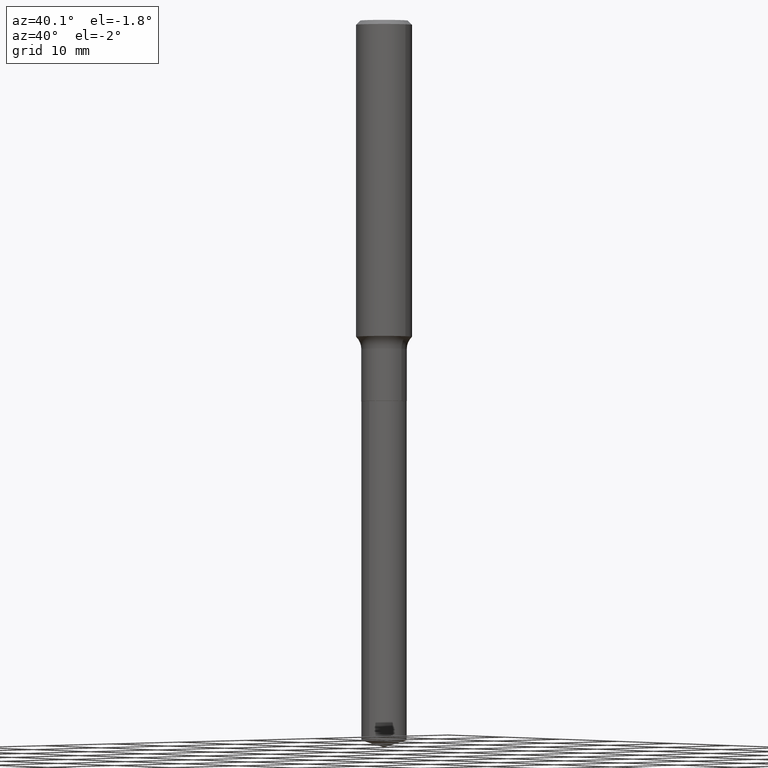
[diagram: clean part render]
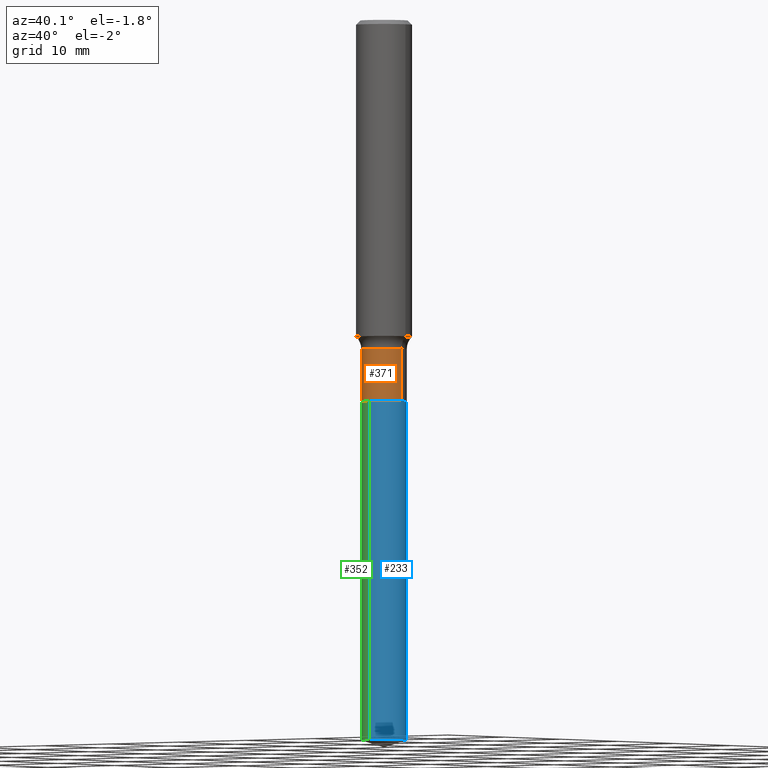
[diagram: same view with three faces highlighted in distinct colors, each labeled with its STEP entity id]
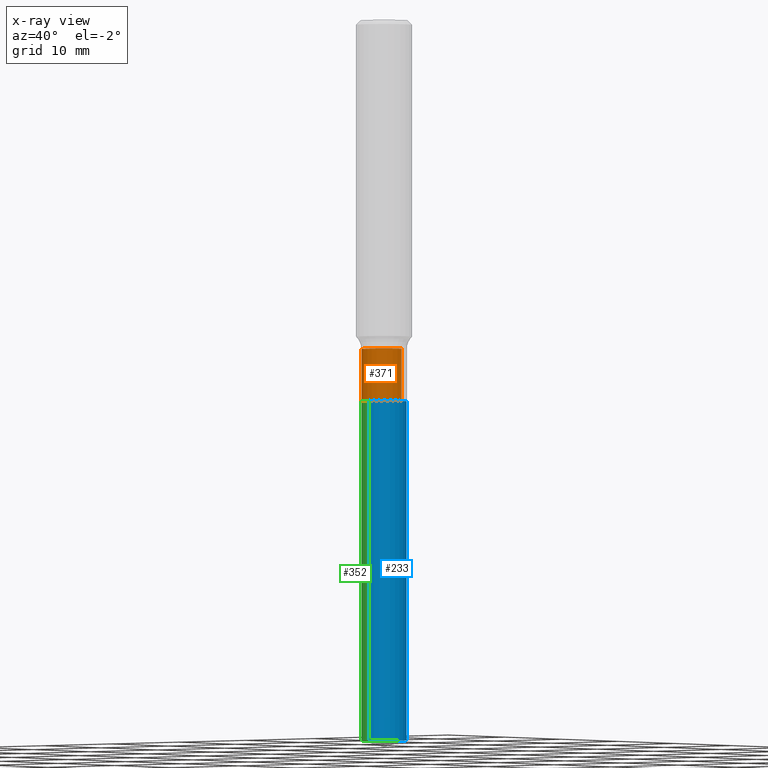
[diagram: x-ray of the same camera — body ghosted, the three highlighted faces saturated]
A machine part, auxiliary view with three faces highlighted in distinct colors.
The next image is the same camera in x-ray (body ghosted, the three faces saturated) — at least one of them is partly hidden behind the body in this view.
Their STEP definitions:

[orange] entity #371 — the highlighted cylindrical surface (edge-blend (fillet) strip) has radius 2.5794 mm, axis along (-0, 0, 1).
#24 = ORIENTED_EDGE ( 'NONE', *, *, #385, .T. ) ;
#27 = LINE ( 'NONE', #58, #154 ) ;
#46 = CARTESIAN_POINT ( 'NONE',  ( 3.593616410689058018E-29, -5.130731827430002515E-15, -1.469500000000000028 ) ) ;
#52 = CARTESIAN_POINT ( 'NONE',  ( 0.1015500000000000014, -6.653715987433380604E-15, -1.702600000000000335 ) ) ;
#55 = DIRECTION ( 'NONE',  ( -2.445468806185136877E-29, 3.491481338843145188E-15, 1.000000000000000000 ) ) ;
#58 = CARTESIAN_POINT ( 'NONE',  ( 0.1015499999999999875, -7.091198599190402890E-16, 4.951757515820772372E-30 ) ) ;
#64 = FACE_OUTER_BOUND ( 'NONE', #436, .T. ) ;
#85 = DIRECTION ( 'NONE',  ( 1.000000000000000000, -6.982962677686264344E-15, 0.000000000000000000 ) ) ;
#87 = AXIS2_PLACEMENT_3D ( 'NONE', #46, #192, #483 ) ;
#90 = CARTESIAN_POINT ( 'NONE',  ( 0.1015499999999999736, -5.839851687349042508E-15, -1.469500000000000028 ) ) ;
#93 = VERTEX_POINT ( 'NONE', #451 ) ;
#108 = EDGE_CURVE ( 'NONE', #252, #368, #117, .T. ) ;
#117 = CIRCLE ( 'NONE', #87, 0.1015499999999999736 ) ;
#124 = DIRECTION ( 'NONE',  ( -2.445468806185136597E-29, 3.491481338843145583E-15, 1.000000000000000000 ) ) ;
#132 = ORIENTED_EDGE ( 'NONE', *, *, #108, .F. ) ;
#133 = VECTOR ( 'NONE', #457, 39.37007874015748143 ) ;
#134 = CARTESIAN_POINT ( 'NONE',  ( 0.000000000000000000, 0.000000000000000000, 0.000000000000000000 ) ) ;
#140 = EDGE_CURVE ( 'NONE', #93, #244, #395, .T. ) ;
#154 = VECTOR ( 'NONE', #55, 39.37007874015748143 ) ;
#156 = CARTESIAN_POINT ( 'NONE',  ( -0.1015499999999999736, -4.816107829307788434E-15, -1.469500000000000028 ) ) ;
#172 = EDGE_CURVE ( 'NONE', #93, #252, #343, .T. ) ;
#192 = DIRECTION ( 'NONE',  ( -2.445468806185136597E-29, 3.491481338843145583E-15, 1.000000000000000000 ) ) ;
#196 = DIRECTION ( 'NONE',  ( -2.445468806185136597E-29, 3.491481338843145583E-15, 1.000000000000000000 ) ) ;
#244 = VERTEX_POINT ( 'NONE', #52 ) ;
#252 = VERTEX_POINT ( 'NONE', #156 ) ;
#254 = CYLINDRICAL_SURFACE ( 'NONE', #367, 0.1015499999999999875 ) ;
#255 = ORIENTED_EDGE ( 'NONE', *, *, #172, .F. ) ;
#275 = CARTESIAN_POINT ( 'NONE',  ( -0.1015499999999999875, 7.215561481643816499E-16, -4.995178584153856401E-30 ) ) ;
#343 = LINE ( 'NONE', #275, #133 ) ;
#367 = AXIS2_PLACEMENT_3D ( 'NONE', #134, #124, #392 ) ;
#368 = VERTEX_POINT ( 'NONE', #90 ) ;
#371 = ADVANCED_FACE ( 'NONE', ( #64 ), #254, .T. ) ;
#385 = EDGE_CURVE ( 'NONE', #244, #368, #27, .T. ) ;
#392 = DIRECTION ( 'NONE',  ( 1.000000000000000000, -6.982962677686266711E-15, 4.876176775795935793E-29 ) ) ;
#395 = CIRCLE ( 'NONE', #462, 0.1015500000000000014 ) ;
#436 = EDGE_LOOP ( 'NONE', ( #255, #470, #24, #132 ) ) ;
#451 = CARTESIAN_POINT ( 'NONE',  ( -0.1015500000000000014, -4.816107829307788434E-15, -1.702600000000000335 ) ) ;
#457 = DIRECTION ( 'NONE',  ( -2.445468806185136877E-29, 3.491481338843145188E-15, 1.000000000000000000 ) ) ;
#461 = CARTESIAN_POINT ( 'NONE',  ( 4.163655189410814110E-29, -5.944596127514340611E-15, -1.702600000000000335 ) ) ;
#462 = AXIS2_PLACEMENT_3D ( 'NONE', #461, #196, #85 ) ;
#470 = ORIENTED_EDGE ( 'NONE', *, *, #140, .T. ) ;
#483 = DIRECTION ( 'NONE',  ( 1.000000000000000000, -6.982962677686266711E-15, 0.000000000000000000 ) ) ;

[blue] entity #233 — the highlighted cylindrical surface (edge-blend (fillet) strip) has radius 2.5794 mm, axis along (-0, 0, 1).
#4 = EDGE_CURVE ( 'NONE', #477, #257, #153, .T. ) ;
#12 = CARTESIAN_POINT ( 'NONE',  ( 4.164877923813906911E-29, -5.946341868183761325E-15, -1.703100000000000280 ) ) ;
#20 = ORIENTED_EDGE ( 'NONE', *, *, #4, .T. ) ;
#41 = VECTOR ( 'NONE', #311, 39.37007874015748143 ) ;
#48 = CIRCLE ( 'NONE', #424, 0.1015500000000000014 ) ;
#88 = LINE ( 'NONE', #278, #258 ) ;
#100 = VERTEX_POINT ( 'NONE', #269 ) ;
#102 = AXIS2_PLACEMENT_3D ( 'NONE', #105, #414, #405 ) ;
#105 = CARTESIAN_POINT ( 'NONE',  ( 7.858917578729167832E-29, -1.125063821662293819E-14, -3.217981407989339626 ) ) ;
#135 = VERTEX_POINT ( 'NONE', #425 ) ;
#144 = EDGE_CURVE ( 'NONE', #257, #135, #428, .T. ) ;
#153 = CIRCLE ( 'NONE', #102, 0.1015500000000000291 ) ;
#159 = CYLINDRICAL_SURFACE ( 'NONE', #484, 0.1015500000000000014 ) ;
#183 = CARTESIAN_POINT ( 'NONE',  ( -7.091198599189617973E-16, -0.1015500000000112701, -3.217981407989339182 ) ) ;
#209 = ORIENTED_EDGE ( 'NONE', *, *, #381, .F. ) ;
#214 = EDGE_LOOP ( 'NONE', ( #20, #293, #344, #209 ) ) ;
#215 = EDGE_CURVE ( 'NONE', #100, #135, #48, .T. ) ;
#216 = DIRECTION ( 'NONE',  ( -2.438500885569821195E-29, 3.501459797753689720E-15, 1.000000000000000000 ) ) ;
#233 = ADVANCED_FACE ( 'NONE', ( #346 ), #159, .T. ) ;
#239 = DIRECTION ( 'NONE',  ( -6.982962677686266711E-15, -1.000000000000000000, 2.690150658458161520E-15 ) ) ;
#257 = VERTEX_POINT ( 'NONE', #422 ) ;
#258 = VECTOR ( 'NONE', #216, 39.37007874015748143 ) ;
#269 = CARTESIAN_POINT ( 'NONE',  ( -7.091198599189987752E-16, -0.1015500000000059549, -1.703099999999999836 ) ) ;
#274 = DIRECTION ( 'NONE',  ( -2.438500885569821195E-29, 3.501459797753689720E-15, 1.000000000000000000 ) ) ;
#277 = CARTESIAN_POINT ( 'NONE',  ( 7.215561481644232623E-16, 0.1015499999999940617, -1.703100000000000502 ) ) ;
#278 = CARTESIAN_POINT ( 'NONE',  ( -7.091198599189987752E-16, -0.1015500000000059549, -1.703099999999999836 ) ) ;
#293 = ORIENTED_EDGE ( 'NONE', *, *, #144, .T. ) ;
#308 = DIRECTION ( 'NONE',  ( -2.438500885569821195E-29, 3.501459797753689720E-15, 1.000000000000000000 ) ) ;
#311 = DIRECTION ( 'NONE',  ( -2.438500885569821195E-29, 3.501459797753689720E-15, 1.000000000000000000 ) ) ;
#341 = DIRECTION ( 'NONE',  ( -6.982962677686266711E-15, -1.000000000000000000, 2.690150658458161520E-15 ) ) ;
#344 = ORIENTED_EDGE ( 'NONE', *, *, #215, .F. ) ;
#346 = FACE_OUTER_BOUND ( 'NONE', #214, .T. ) ;
#381 = EDGE_CURVE ( 'NONE', #477, #100, #88, .T. ) ;
#405 = DIRECTION ( 'NONE',  ( -6.982962677686265922E-15, -1.000000000000000000, 5.380301316916322250E-15 ) ) ;
#414 = DIRECTION ( 'NONE',  ( -2.438500885569821195E-29, 3.501459797753689720E-15, 1.000000000000000000 ) ) ;
#420 = CARTESIAN_POINT ( 'NONE',  ( 4.164877923813906911E-29, -5.946341868183761325E-15, -1.703100000000000280 ) ) ;
#422 = CARTESIAN_POINT ( 'NONE',  ( 7.215561481644602402E-16, 0.1015499999999887326, -3.217981407989340514 ) ) ;
#424 = AXIS2_PLACEMENT_3D ( 'NONE', #12, #274, #341 ) ;
#425 = CARTESIAN_POINT ( 'NONE',  ( 7.215561481644606346E-16, 0.1015499999999940617, -1.703100000000000502 ) ) ;
#428 = LINE ( 'NONE', #277, #41 ) ;
#477 = VERTEX_POINT ( 'NONE', #183 ) ;
#484 = AXIS2_PLACEMENT_3D ( 'NONE', #420, #308, #239 ) ;

[green] entity #352 — the highlighted cylindrical surface (edge-blend (fillet) strip) has radius 2.5794 mm, axis along (-0, 0, 1).
#25 = DIRECTION ( 'NONE',  ( -2.438500885569821195E-29, 3.501459797753689720E-15, 1.000000000000000000 ) ) ;
#41 = VECTOR ( 'NONE', #311, 39.37007874015748143 ) ;
#57 = EDGE_CURVE ( 'NONE', #135, #100, #406, .T. ) ;
#59 = ORIENTED_EDGE ( 'NONE', *, *, #320, .T. ) ;
#66 = CARTESIAN_POINT ( 'NONE',  ( 7.858917578729167832E-29, -1.125063821662293819E-14, -3.217981407989339626 ) ) ;
#88 = LINE ( 'NONE', #278, #258 ) ;
#100 = VERTEX_POINT ( 'NONE', #269 ) ;
#107 = DIRECTION ( 'NONE',  ( -6.982962677686266711E-15, -1.000000000000000000, 2.690150658458161520E-15 ) ) ;
#118 = CIRCLE ( 'NONE', #194, 0.1015500000000000291 ) ;
#131 = CARTESIAN_POINT ( 'NONE',  ( 4.164877923813906911E-29, -5.946341868183761325E-15, -1.703100000000000280 ) ) ;
#135 = VERTEX_POINT ( 'NONE', #425 ) ;
#144 = EDGE_CURVE ( 'NONE', #257, #135, #428, .T. ) ;
#169 = DIRECTION ( 'NONE',  ( -6.982962677686265922E-15, -1.000000000000000000, 5.380301316916322250E-15 ) ) ;
#183 = CARTESIAN_POINT ( 'NONE',  ( -7.091198599189617973E-16, -0.1015500000000112701, -3.217981407989339182 ) ) ;
#194 = AXIS2_PLACEMENT_3D ( 'NONE', #66, #25, #169 ) ;
#216 = DIRECTION ( 'NONE',  ( -2.438500885569821195E-29, 3.501459797753689720E-15, 1.000000000000000000 ) ) ;
#220 = DIRECTION ( 'NONE',  ( -2.438500885569821195E-29, 3.501459797753689720E-15, 1.000000000000000000 ) ) ;
#242 = AXIS2_PLACEMENT_3D ( 'NONE', #131, #467, #439 ) ;
#257 = VERTEX_POINT ( 'NONE', #422 ) ;
#258 = VECTOR ( 'NONE', #216, 39.37007874015748143 ) ;
#269 = CARTESIAN_POINT ( 'NONE',  ( -7.091198599189987752E-16, -0.1015500000000059549, -1.703099999999999836 ) ) ;
#277 = CARTESIAN_POINT ( 'NONE',  ( 7.215561481644232623E-16, 0.1015499999999940617, -1.703100000000000502 ) ) ;
#278 = CARTESIAN_POINT ( 'NONE',  ( -7.091198599189987752E-16, -0.1015500000000059549, -1.703099999999999836 ) ) ;
#283 = CYLINDRICAL_SURFACE ( 'NONE', #242, 0.1015500000000000014 ) ;
#287 = AXIS2_PLACEMENT_3D ( 'NONE', #336, #220, #107 ) ;
#311 = DIRECTION ( 'NONE',  ( -2.438500885569821195E-29, 3.501459797753689720E-15, 1.000000000000000000 ) ) ;
#312 = FACE_OUTER_BOUND ( 'NONE', #411, .T. ) ;
#320 = EDGE_CURVE ( 'NONE', #257, #477, #118, .T. ) ;
#322 = ORIENTED_EDGE ( 'NONE', *, *, #381, .T. ) ;
#336 = CARTESIAN_POINT ( 'NONE',  ( 4.164877923813906911E-29, -5.946341868183761325E-15, -1.703100000000000280 ) ) ;
#352 = ADVANCED_FACE ( 'NONE', ( #312 ), #283, .T. ) ;
#366 = ORIENTED_EDGE ( 'NONE', *, *, #144, .F. ) ;
#381 = EDGE_CURVE ( 'NONE', #477, #100, #88, .T. ) ;
#391 = ORIENTED_EDGE ( 'NONE', *, *, #57, .F. ) ;
#406 = CIRCLE ( 'NONE', #287, 0.1015500000000000014 ) ;
#411 = EDGE_LOOP ( 'NONE', ( #366, #59, #322, #391 ) ) ;
#422 = CARTESIAN_POINT ( 'NONE',  ( 7.215561481644602402E-16, 0.1015499999999887326, -3.217981407989340514 ) ) ;
#425 = CARTESIAN_POINT ( 'NONE',  ( 7.215561481644606346E-16, 0.1015499999999940617, -1.703100000000000502 ) ) ;
#428 = LINE ( 'NONE', #277, #41 ) ;
#439 = DIRECTION ( 'NONE',  ( -6.982962677686266711E-15, -1.000000000000000000, 2.690150658458161520E-15 ) ) ;
#467 = DIRECTION ( 'NONE',  ( -2.438500885569821195E-29, 3.501459797753689720E-15, 1.000000000000000000 ) ) ;
#477 = VERTEX_POINT ( 'NONE', #183 ) ;